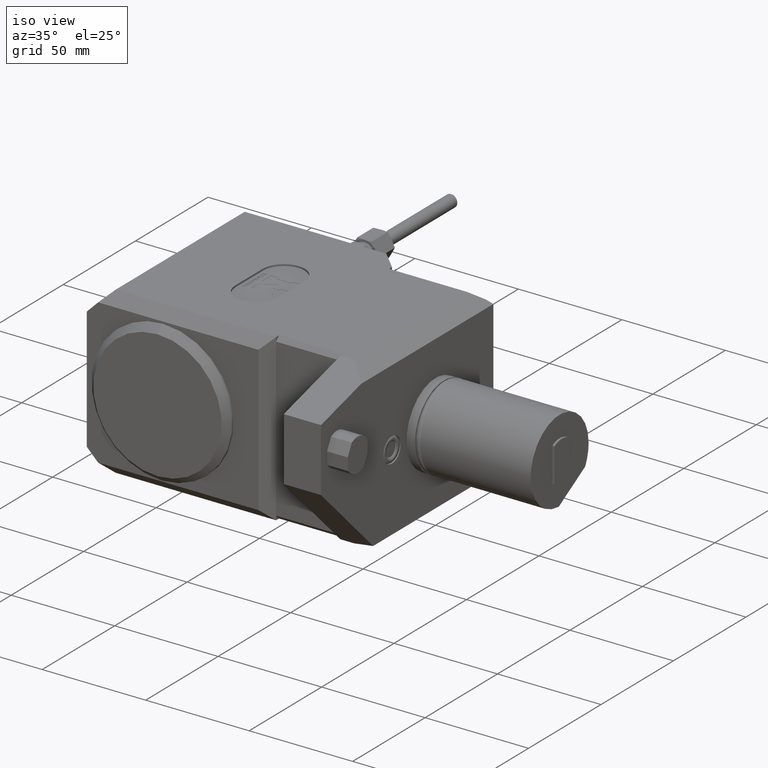
[diagram: clean part render]
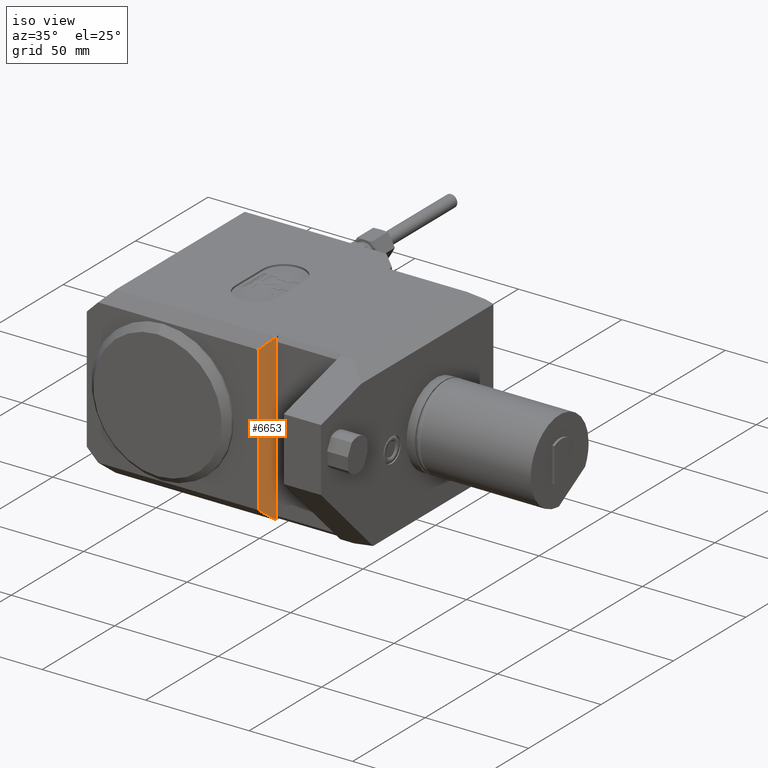
[diagram: same view with one face highlighted and labeled with its STEP entity id]
A machine part, iso view. The second image highlights one B-rep face of the part: STEP entity #6653.
In plain terms, the highlighted planar face has unit normal (-0.7071, 0.7071, -0).
Its self-contained STEP definition (entity closure, byte-faithful):
#364=LINE('',#9814,#920);
#375=LINE('',#9983,#931);
#378=LINE('',#9989,#934);
#683=LINE('',#10902,#1239);
#685=LINE('',#10905,#1241);
#686=LINE('',#10907,#1242);
#920=VECTOR('',#7778,1000.);
#931=VECTOR('',#7821,1000.);
#934=VECTOR('',#7830,1000.);
#1239=VECTOR('',#8575,1000.);
#1241=VECTOR('',#8579,1000.);
#1242=VECTOR('',#8582,1000.);
#1543=PLANE('',#7170);
#2744=ORIENTED_EDGE('',*,*,#4119,.T.);
#2745=ORIENTED_EDGE('',*,*,#3724,.F.);
#2746=ORIENTED_EDGE('',*,*,#3705,.T.);
#2747=ORIENTED_EDGE('',*,*,#3721,.F.);
#2748=ORIENTED_EDGE('',*,*,#4120,.F.);
#2749=ORIENTED_EDGE('',*,*,#4117,.F.);
#3705=EDGE_CURVE('',#4599,#4612,#364,.T.);
#3721=EDGE_CURVE('',#4618,#4612,#375,.T.);
#3724=EDGE_CURVE('',#4599,#4600,#378,.T.);
#4117=EDGE_CURVE('',#4899,#4896,#683,.T.);
#4119=EDGE_CURVE('',#4899,#4600,#685,.F.);
#4120=EDGE_CURVE('',#4896,#4618,#686,.F.);
#4599=VERTEX_POINT('',#9754);
#4600=VERTEX_POINT('',#9759);
#4612=VERTEX_POINT('',#9789);
#4618=VERTEX_POINT('',#9803);
#4896=VERTEX_POINT('',#10895);
#4899=VERTEX_POINT('',#10901);
#5647=EDGE_LOOP('',(#2744,#2745,#2746,#2747,#2748,#2749));
#6113=FACE_BOUND('',#5647,.T.);
#6653=ADVANCED_FACE('',(#6113),#1543,.F.);
#7170=AXIS2_PLACEMENT_3D('',#10906,#8580,#8581);
#7778=DIRECTION('',(0.,0.,1.));
#7821=DIRECTION('',(5.06539254985228E-16,-2.05731406761622E-16,-1.));
#7830=DIRECTION('',(5.06539254985228E-16,-2.05731406761622E-16,-1.));
#8575=DIRECTION('',(-5.06539254985228E-16,2.05731406761622E-16,1.));
#8579=DIRECTION('',(-0.577350269189626,-0.577350269189626,0.577350269189626));
#8580=DIRECTION('',(-0.707106781186547,0.707106781186548,-5.03651414961427E-16));
#8581=DIRECTION('',(0.707106781186548,0.707106781186547,2.12703269313046E-16));
#8582=DIRECTION('',(-0.577350269189626,-0.577350269189626,-0.577350269189625));
#9754=CARTESIAN_POINT('',(-49.,-40.,-38.));
#9759=CARTESIAN_POINT('',(-49.,-40.,-40.));
#9789=CARTESIAN_POINT('',(-49.,-40.,38.));
#9803=CARTESIAN_POINT('',(-49.,-40.,40.));
#9814=CARTESIAN_POINT('',(-49.,-40.,-40.));
#9983=CARTESIAN_POINT('',(-49.,-40.,-40.));
#9989=CARTESIAN_POINT('',(-49.,-40.,-40.));
#10895=CARTESIAN_POINT('',(-54.,-45.,35.));
#10901=CARTESIAN_POINT('',(-54.,-45.,-35.));
#10902=CARTESIAN_POINT('',(-54.,-45.,-40.));
#10905=CARTESIAN_POINT('',(-52.3333333333333,-43.3333333333333,-36.6666666666667));
#10906=CARTESIAN_POINT('',(-54.,-45.,-40.));
#10907=CARTESIAN_POINT('',(-79.,-70.,9.99999999999999));